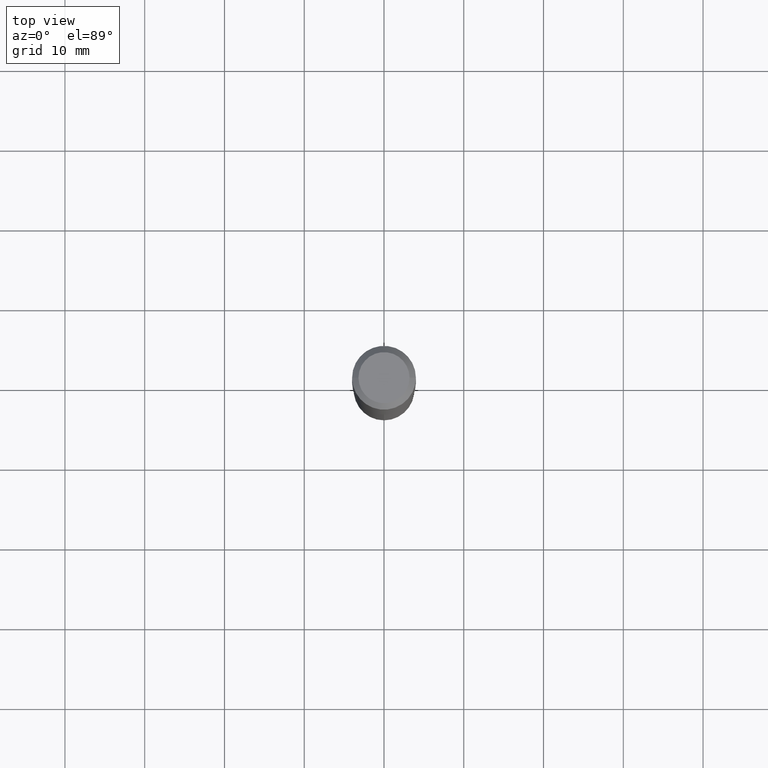
[diagram: clean part render]
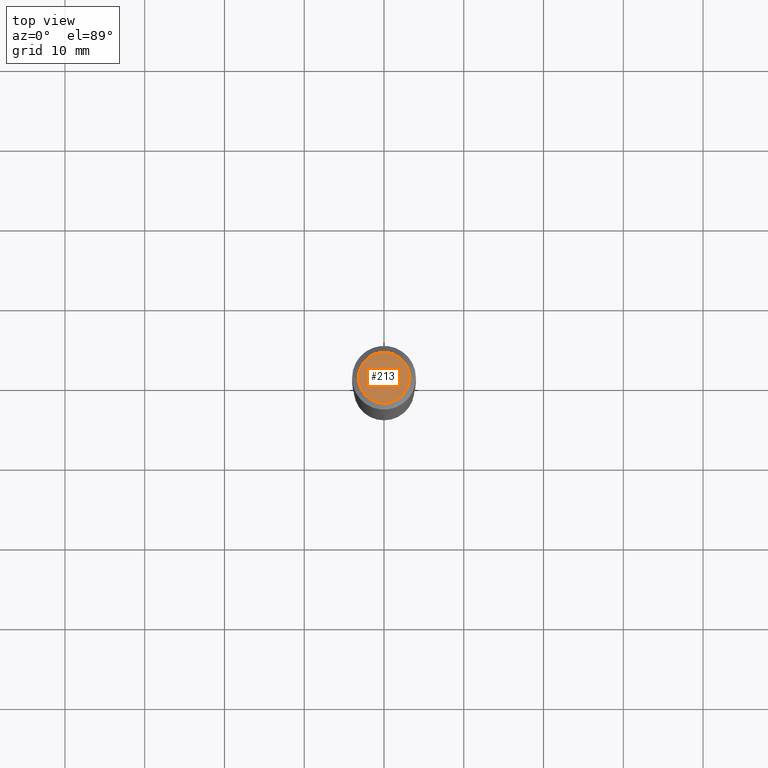
[diagram: same view with one face highlighted and labeled with its STEP entity id]
A machine part, top view. The second image highlights one B-rep face of the part: STEP entity #213.
In plain terms, the highlighted planar face has unit normal (0, -0, -1).
Its self-contained STEP definition (entity closure, byte-faithful):
#32 = VERTEX_POINT ( 'NONE', #178 ) ;
#75 = ORIENTED_EDGE ( 'NONE', *, *, #272, .T. ) ;
#88 = EDGE_CURVE ( 'NONE', #32, #188, #309, .T. ) ;
#89 = AXIS2_PLACEMENT_3D ( 'NONE', #190, #371, #346 ) ;
#95 = DIRECTION ( 'NONE',  ( -2.445468806185136597E-29, 3.491481338843145583E-15, 1.000000000000000000 ) ) ;
#105 = ORIENTED_EDGE ( 'NONE', *, *, #88, .T. ) ;
#166 = CARTESIAN_POINT ( 'NONE',  ( -0.1260000000000000009, 9.348441284752484904E-16, 3.860086710906114178E-18 ) ) ;
#172 = PLANE ( 'NONE',  #358 ) ;
#178 = CARTESIAN_POINT ( 'NONE',  ( 0.1260000000000000009, -1.027466422270894443E-15, 3.860086710919128072E-18 ) ) ;
#188 = VERTEX_POINT ( 'NONE', #166 ) ;
#190 = CARTESIAN_POINT ( 'NONE',  ( -9.439721640706201686E-47, 1.347742071746726764E-32, 3.860086710912459732E-18 ) ) ;
#208 = CARTESIAN_POINT ( 'NONE',  ( -4.719860820353100843E-47, 6.738710358733633822E-33, 1.930043355456229866E-18 ) ) ;
#213 = ADVANCED_FACE ( 'NONE', ( #327 ), #172, .F. ) ;
#252 = DIRECTION ( 'NONE',  ( 1.000000000000000000, -6.982962677686265922E-15, 4.876281427513067258E-29 ) ) ;
#272 = EDGE_CURVE ( 'NONE', #188, #32, #438, .T. ) ;
#291 = CARTESIAN_POINT ( 'NONE',  ( -9.439721640706201686E-47, 1.347742071746726764E-32, 3.860086710912459732E-18 ) ) ;
#309 = CIRCLE ( 'NONE', #89, 0.1260000000000000009 ) ;
#327 = FACE_OUTER_BOUND ( 'NONE', #347, .T. ) ;
#346 = DIRECTION ( 'NONE',  ( 1.000000000000000000, -6.982962677686265922E-15, 4.876281427513067258E-29 ) ) ;
#347 = EDGE_LOOP ( 'NONE', ( #75, #105 ) ) ;
#358 = AXIS2_PLACEMENT_3D ( 'NONE', #208, #440, #363 ) ;
#363 = DIRECTION ( 'NONE',  ( -1.000000000000000000, 6.982962677686265922E-15, -4.876176775795935793E-29 ) ) ;
#371 = DIRECTION ( 'NONE',  ( -2.445468806185136597E-29, 3.491481338843145583E-15, 1.000000000000000000 ) ) ;
#404 = AXIS2_PLACEMENT_3D ( 'NONE', #291, #95, #252 ) ;
#438 = CIRCLE ( 'NONE', #404, 0.1260000000000000009 ) ;
#440 = DIRECTION ( 'NONE',  ( 2.438088387897960049E-29, -3.491481338843145188E-15, -1.000000000000000000 ) ) ;